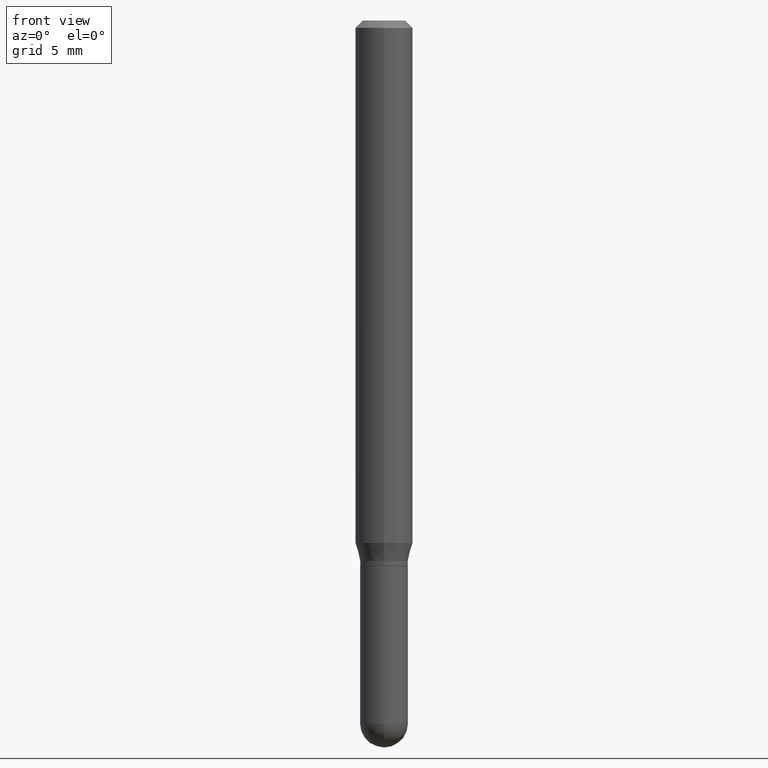
[diagram: clean part render]
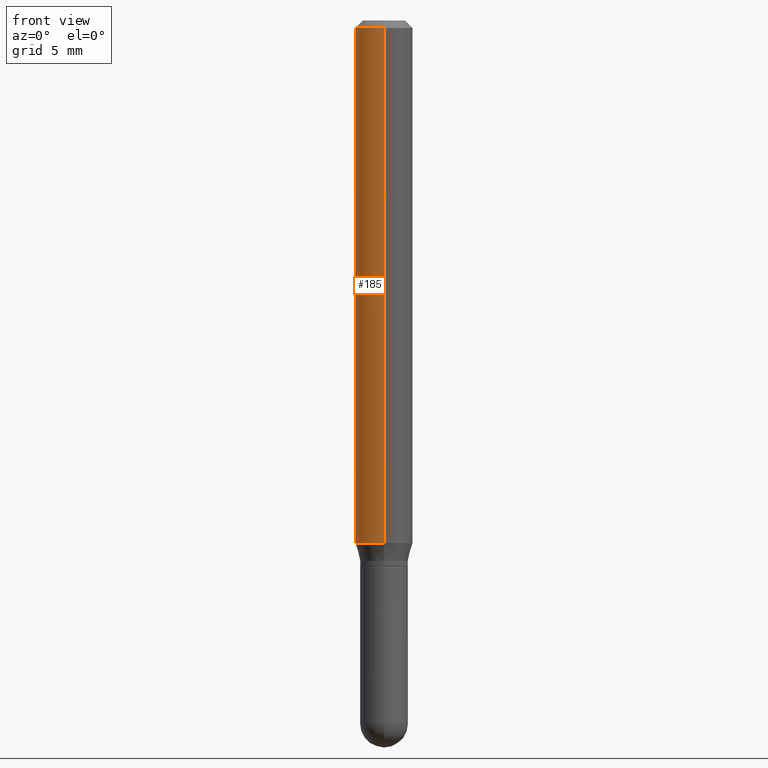
[diagram: same view with one face highlighted and labeled with its STEP entity id]
A machine part, front view. The second image highlights one B-rep face of the part: STEP entity #185.
In plain terms, the highlighted cylindrical surface (edge-blend (fillet) strip) has radius 1.4999 mm, axis along (-0, 0, 1).
Its self-contained STEP definition (entity closure, byte-faithful):
#2 = ORIENTED_EDGE ( 'NONE', *, *, #4, .T. ) ;
#4 = EDGE_CURVE ( 'NONE', #374, #35, #450, .T. ) ;
#7 = CARTESIAN_POINT ( 'NONE',  ( 4.195754854663657226E-16, 0.05904999999999996363, -0.01500000000000016945 ) ) ;
#20 = LINE ( 'NONE', #282, #357 ) ;
#35 = VERTEX_POINT ( 'NONE', #190 ) ;
#41 = VERTEX_POINT ( 'NONE', #7 ) ;
#50 = DIRECTION ( 'NONE',  ( -2.445597689744414276E-29, 3.491296770250663257E-15, 1.000000000000000000 ) ) ;
#59 = FACE_OUTER_BOUND ( 'NONE', #265, .T. ) ;
#60 = LINE ( 'NONE', #322, #471 ) ;
#61 = DIRECTION ( 'NONE',  ( -6.982962677686265922E-15, -1.000000000000000000, 3.491296770250664046E-15 ) ) ;
#84 = EDGE_CURVE ( 'NONE', #35, #108, #20, .T. ) ;
#90 = AXIS2_PLACEMENT_3D ( 'NONE', #346, #478, #472 ) ;
#96 = CYLINDRICAL_SURFACE ( 'NONE', #400, 0.05905000000000000526 ) ;
#108 = VERTEX_POINT ( 'NONE', #197 ) ;
#144 = ORIENTED_EDGE ( 'NONE', *, *, #211, .F. ) ;
#185 = ADVANCED_FACE ( 'NONE', ( #59 ), #96, .T. ) ;
#190 = CARTESIAN_POINT ( 'NONE',  ( -4.123439461173478031E-16, -0.05905000000000376614, -1.075339299545447158 ) ) ;
#197 = CARTESIAN_POINT ( 'NONE',  ( -4.123439461173737369E-16, -0.05905000000000006771, -0.01499999999999975485 ) ) ;
#211 = EDGE_CURVE ( 'NONE', #41, #108, #284, .T. ) ;
#265 = EDGE_LOOP ( 'NONE', ( #293, #2, #505, #144 ) ) ;
#282 = CARTESIAN_POINT ( 'NONE',  ( -4.123439461173740327E-16, -0.05905000000000000526, 2.061610742833017337E-16 ) ) ;
#284 = CIRCLE ( 'NONE', #90, 0.05905000000000001914 ) ;
#293 = ORIENTED_EDGE ( 'NONE', *, *, #490, .F. ) ;
#320 = DIRECTION ( 'NONE',  ( -2.445597689744413996E-29, 3.491296770250663651E-15, 1.000000000000000000 ) ) ;
#322 = CARTESIAN_POINT ( 'NONE',  ( 4.195754854663391478E-16, 0.05905000000000000526, -2.061610742833017337E-16 ) ) ;
#346 = CARTESIAN_POINT ( 'NONE',  ( 3.668396534616611833E-31, -5.236945155375981672E-17, -0.01499999999999996128 ) ) ;
#357 = VECTOR ( 'NONE', #50, 39.37007874015748143 ) ;
#364 = DIRECTION ( 'NONE',  ( -2.445597689744414276E-29, 3.491296770250663257E-15, 1.000000000000000000 ) ) ;
#374 = VERTEX_POINT ( 'NONE', #413 ) ;
#377 = DIRECTION ( 'NONE',  ( -6.982962677686265922E-15, -1.000000000000000000, 4.626330217890369336E-15 ) ) ;
#399 = CARTESIAN_POINT ( 'NONE',  ( 0.000000000000000000, 0.000000000000000000, 0.000000000000000000 ) ) ;
#400 = AXIS2_PLACEMENT_3D ( 'NONE', #399, #320, #61 ) ;
#413 = CARTESIAN_POINT ( 'NONE',  ( 4.195754854663652789E-16, 0.05904999999999623744, -1.075339299545447380 ) ) ;
#419 = DIRECTION ( 'NONE',  ( -2.445597689744413996E-29, 3.491296770250663651E-15, 1.000000000000000000 ) ) ;
#450 = CIRCLE ( 'NONE', #481, 0.05904999999999999832 ) ;
#463 = CARTESIAN_POINT ( 'NONE',  ( 2.629847306659722038E-29, -3.754328623426630986E-15, -1.075339299545447158 ) ) ;
#471 = VECTOR ( 'NONE', #364, 39.37007874015748143 ) ;
#472 = DIRECTION ( 'NONE',  ( -6.982962677686265922E-15, -1.000000000000000000, 3.505890868245044514E-15 ) ) ;
#478 = DIRECTION ( 'NONE',  ( -2.445597689744413996E-29, 3.491296770250663651E-15, 1.000000000000000000 ) ) ;
#481 = AXIS2_PLACEMENT_3D ( 'NONE', #463, #419, #377 ) ;
#490 = EDGE_CURVE ( 'NONE', #374, #41, #60, .T. ) ;
#505 = ORIENTED_EDGE ( 'NONE', *, *, #84, .T. ) ;